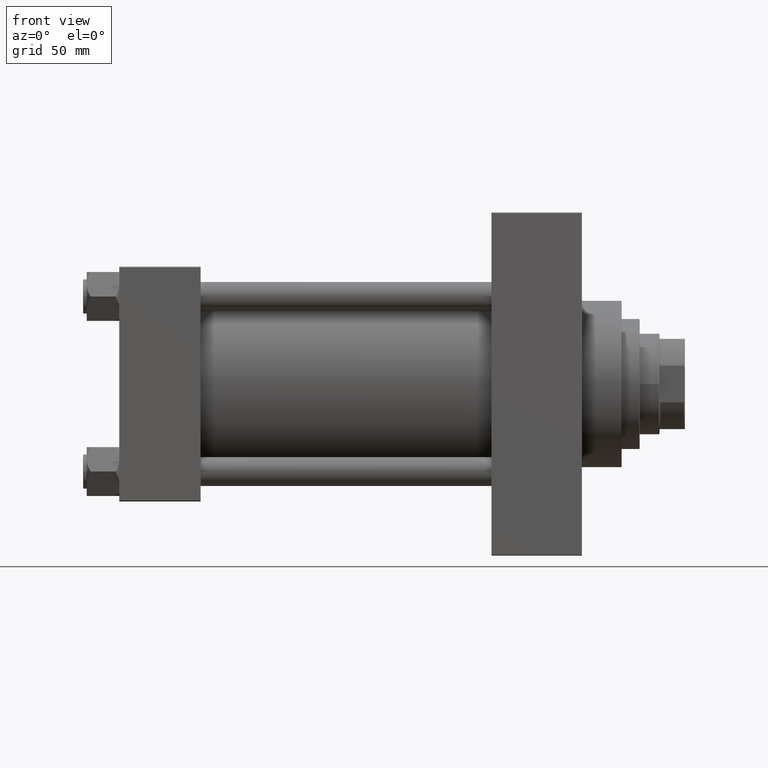
[diagram: clean part render]
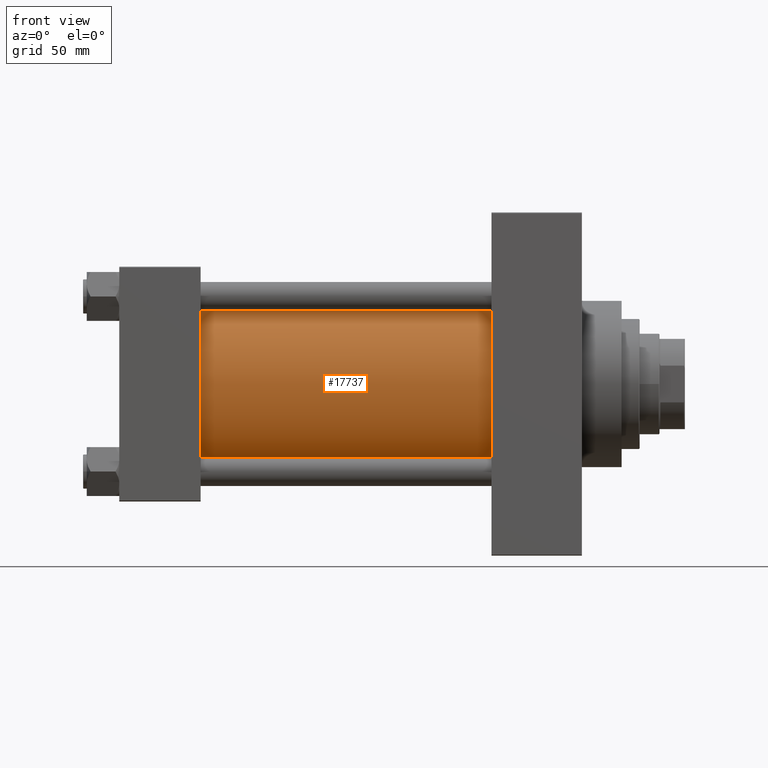
[diagram: same view with one face highlighted and labeled with its STEP entity id]
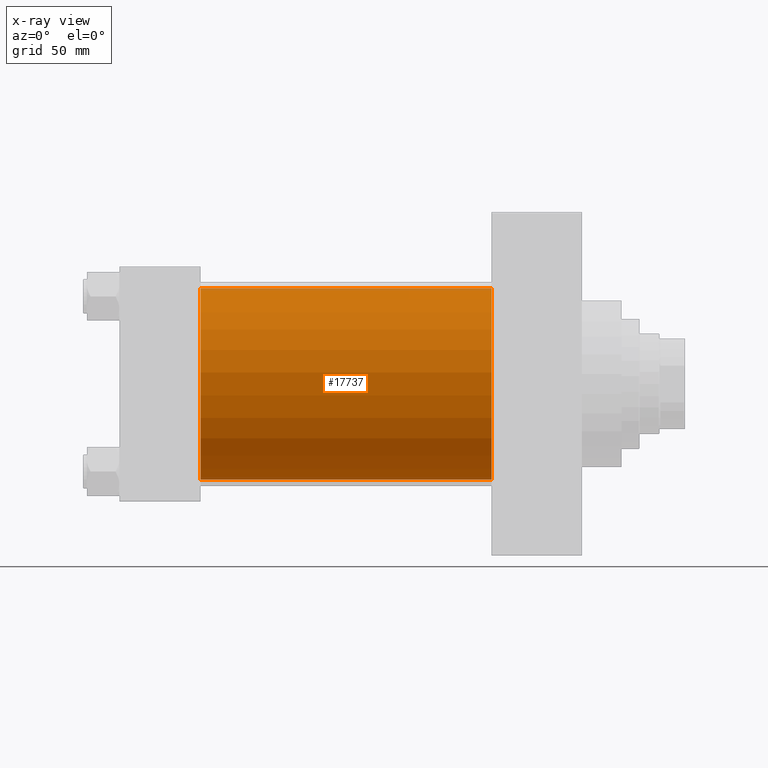
[diagram: x-ray of the same camera — body ghosted, the highlighted face saturated]
A machine part, front view. The second image highlights one B-rep face of the part: STEP entity #17737.
The next image is the same camera in x-ray: the body ghosted, the highlighted face saturated — about 3% of this face is hidden behind the body in this view.
In plain terms, the highlighted cylindrical surface (partial cylindrical patch) has radius 53 mm, axis along (-1, -0, -0).
Its self-contained STEP definition (entity closure, byte-faithful):
#2379 = CIRCLE ( 'NONE', #25522, 53.00000000000000711 ) ;
#3253 = EDGE_CURVE ( 'NONE', #22513, #3422, #2379, .T. ) ;
#3422 = VERTEX_POINT ( 'NONE', #3973 ) ;
#3973 = CARTESIAN_POINT ( 'NONE',  ( 206.0000000000000284, 3.888542821515762466E-15, -53.00000000000000711 ) ) ;
#4015 = CYLINDRICAL_SURFACE ( 'NONE', #23297, 53.00000000000000711 ) ;
#5399 = EDGE_LOOP ( 'NONE', ( #26949, #40987, #12455, #6151 ) ) ;
#6151 = ORIENTED_EDGE ( 'NONE', *, *, #32069, .T. ) ;
#7703 = LINE ( 'NONE', #10357, #10824 ) ;
#9627 = CARTESIAN_POINT ( 'NONE',  ( 44.99999999999998579, -2.602085213965210642E-15, 0.000000000000000000 ) ) ;
#10357 = CARTESIAN_POINT ( 'NONE',  ( 206.0000000000000284, -2.602085213965210642E-15, 53.00000000000000711 ) ) ;
#10824 = VECTOR ( 'NONE', #17832, 1000.000000000000000 ) ;
#11022 = FACE_OUTER_BOUND ( 'NONE', #5399, .T. ) ;
#11301 = AXIS2_PLACEMENT_3D ( 'NONE', #9627, #38593, #12533 ) ;
#12455 = ORIENTED_EDGE ( 'NONE', *, *, #44759, .T. ) ;
#12533 = DIRECTION ( 'NONE',  ( 0.000000000000000000, 0.000000000000000000, 1.000000000000000000 ) ) ;
#17737 = ADVANCED_FACE ( 'NONE', ( #11022 ), #4015, .T. ) ;
#17832 = DIRECTION ( 'NONE',  ( -1.000000000000000000, -0.000000000000000000, -0.000000000000000000 ) ) ;
#18336 = DIRECTION ( 'NONE',  ( -1.000000000000000000, -0.000000000000000000, -0.000000000000000000 ) ) ;
#19065 = CARTESIAN_POINT ( 'NONE',  ( 206.0000000000000284, 3.888542821515762466E-15, -53.00000000000000711 ) ) ;
#21879 = DIRECTION ( 'NONE',  ( -1.000000000000000000, -0.000000000000000000, -0.000000000000000000 ) ) ;
#22513 = VERTEX_POINT ( 'NONE', #47700 ) ;
#23297 = AXIS2_PLACEMENT_3D ( 'NONE', #28889, #21879, #29359 ) ;
#23785 = VERTEX_POINT ( 'NONE', #41376 ) ;
#25522 = AXIS2_PLACEMENT_3D ( 'NONE', #38527, #34899, #31285 ) ;
#25847 = VERTEX_POINT ( 'NONE', #30936 ) ;
#26949 = ORIENTED_EDGE ( 'NONE', *, *, #46479, .F. ) ;
#28889 = CARTESIAN_POINT ( 'NONE',  ( 206.0000000000000284, -2.602085213965210642E-15, 0.000000000000000000 ) ) ;
#29359 = DIRECTION ( 'NONE',  ( 0.000000000000000000, 0.000000000000000000, 1.000000000000000000 ) ) ;
#29805 = CIRCLE ( 'NONE', #11301, 53.00000000000000711 ) ;
#30936 = CARTESIAN_POINT ( 'NONE',  ( 44.99999999999998579, -2.602085213965210642E-15, 53.00000000000000711 ) ) ;
#31285 = DIRECTION ( 'NONE',  ( 0.000000000000000000, 0.000000000000000000, -1.000000000000000000 ) ) ;
#32069 = EDGE_CURVE ( 'NONE', #25847, #23785, #29805, .T. ) ;
#34899 = DIRECTION ( 'NONE',  ( 1.000000000000000000, 0.000000000000000000, 0.000000000000000000 ) ) ;
#37407 = LINE ( 'NONE', #19065, #44136 ) ;
#38527 = CARTESIAN_POINT ( 'NONE',  ( 206.0000000000000284, -2.602085213965210642E-15, 0.000000000000000000 ) ) ;
#38593 = DIRECTION ( 'NONE',  ( 1.000000000000000000, -0.000000000000000000, 0.000000000000000000 ) ) ;
#40987 = ORIENTED_EDGE ( 'NONE', *, *, #3253, .F. ) ;
#41376 = CARTESIAN_POINT ( 'NONE',  ( 44.99999999999998579, 3.888542821515762466E-15, -53.00000000000000711 ) ) ;
#44136 = VECTOR ( 'NONE', #18336, 1000.000000000000000 ) ;
#44759 = EDGE_CURVE ( 'NONE', #22513, #25847, #7703, .T. ) ;
#46479 = EDGE_CURVE ( 'NONE', #3422, #23785, #37407, .T. ) ;
#47700 = CARTESIAN_POINT ( 'NONE',  ( 206.0000000000000284, -2.602085213965210642E-15, 53.00000000000000711 ) ) ;